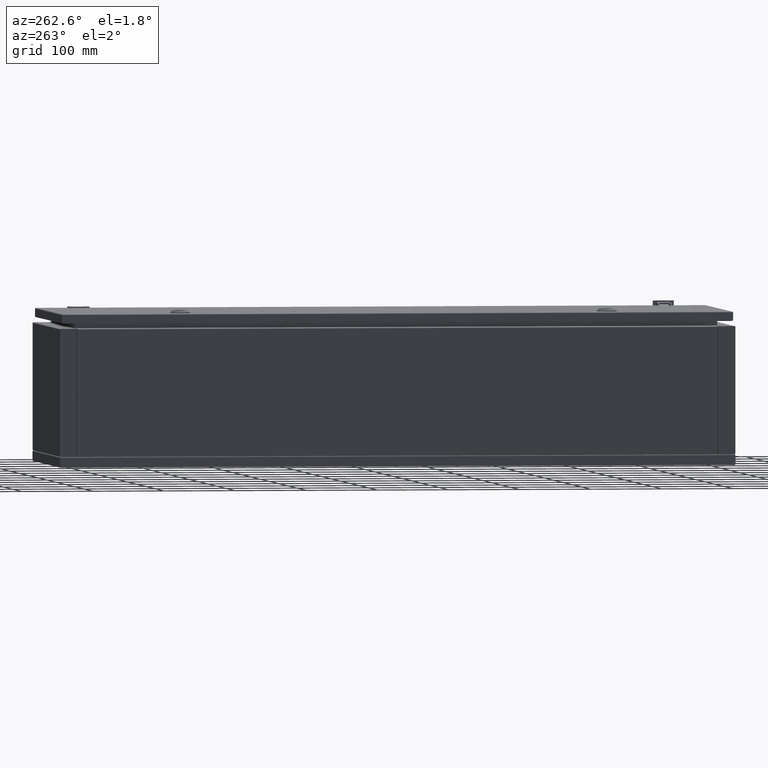
[diagram: clean part render]
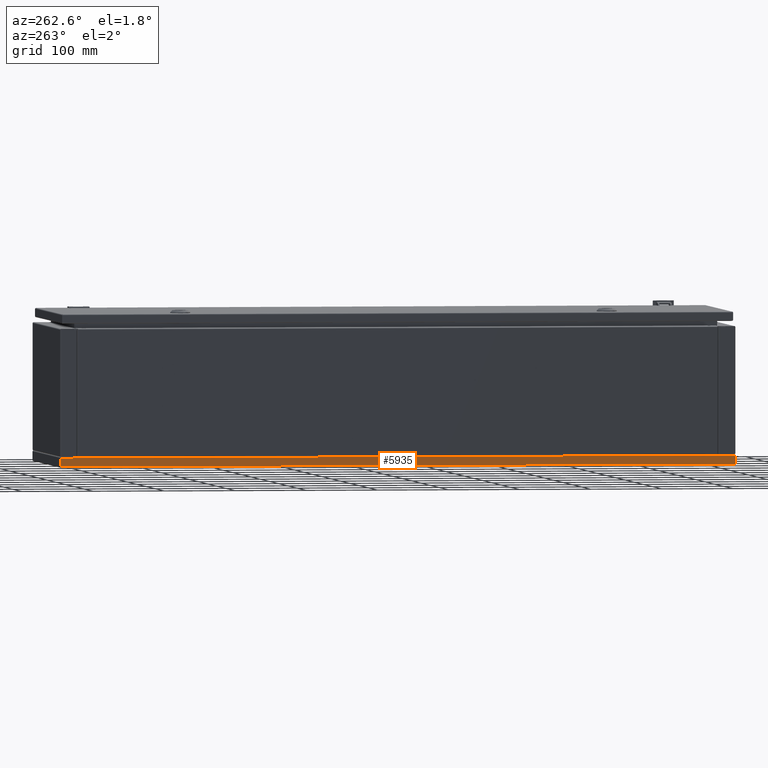
[diagram: same view with one face highlighted and labeled with its STEP entity id]
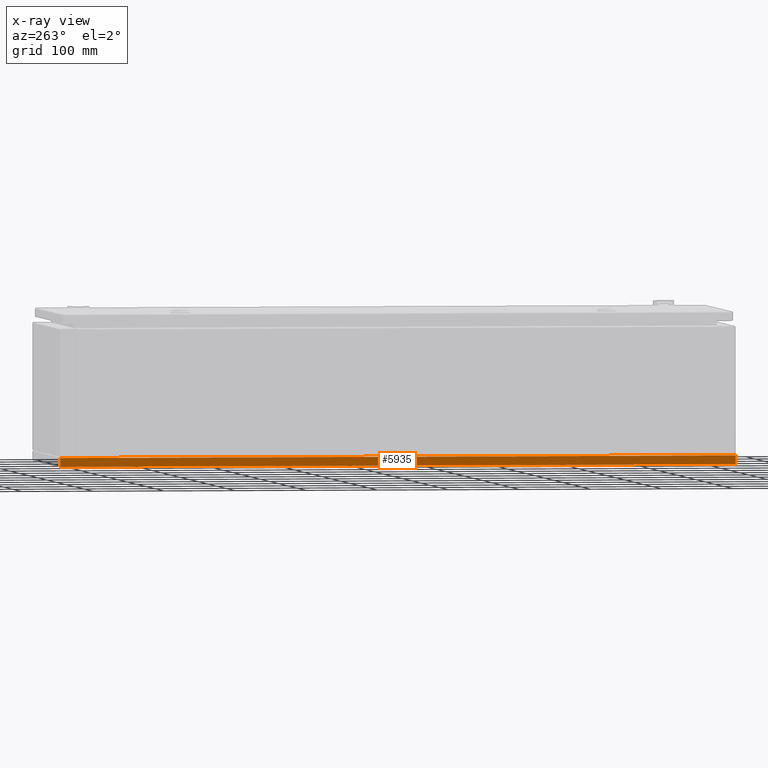
[diagram: x-ray of the same camera — body ghosted, the highlighted face saturated]
A machine part, auxiliary view. The second image highlights one B-rep face of the part: STEP entity #5935.
The next image is the same camera in x-ray: the body ghosted, the highlighted face saturated — about 0% of this face is hidden behind the body in this view.
In plain terms, the highlighted planar face has unit normal (1, -0, 0).
Its self-contained STEP definition (entity closure, byte-faithful):
#2428 = ORIENTED_EDGE ( 'NONE', *, *, #15676, .T. ) ;
#5935 = ADVANCED_FACE ( 'NONE', ( #8319 ), #38559, .F. ) ;
#8319 = FACE_OUTER_BOUND ( 'NONE', #52671, .T. ) ;
#9082 = CARTESIAN_POINT ( 'NONE',  ( -150.0000000000000000, -475.0000000000000000, 0.4999999999998889800 ) ) ;
#11214 = DIRECTION ( 'NONE',  ( 3.965082230804130600E-015, -8.786446564059620000E-032, -1.000000000000000000 ) ) ;
#15676 = EDGE_CURVE ( 'NONE', #65637, #73006, #31934, .T. ) ;
#16489 = AXIS2_PLACEMENT_3D ( 'NONE', #85762, #78406, #11214 ) ;
#22145 = LINE ( 'NONE', #31331, #47719 ) ;
#25372 = ORIENTED_EDGE ( 'NONE', *, *, #58562, .T. ) ;
#26314 = VECTOR ( 'NONE', #32668, 1000.000000000000000 ) ;
#31331 = CARTESIAN_POINT ( 'NONE',  ( -150.0000000000000000, 475.0000000000000000, 0.4999999999997779600 ) ) ;
#31934 = LINE ( 'NONE', #58171, #82968 ) ;
#32668 = DIRECTION ( 'NONE',  ( -4.625929269271490800E-015, 4.625929269271490800E-015, 1.000000000000000000 ) ) ;
#33746 = LINE ( 'NONE', #39238, #26314 ) ;
#36027 = EDGE_CURVE ( 'NONE', #56297, #37172, #33746, .T. ) ;
#37172 = VERTEX_POINT ( 'NONE', #79916 ) ;
#37499 = CARTESIAN_POINT ( 'NONE',  ( -150.0000000000000000, 475.0000000000000000, 0.4999999999997779600 ) ) ;
#37917 = DIRECTION ( 'NONE',  ( -4.625929269271490800E-015, -4.625929269271490800E-015, 1.000000000000000000 ) ) ;
#38559 = PLANE ( 'NONE',  #16489 ) ;
#39238 = CARTESIAN_POINT ( 'NONE',  ( -150.0000000000000000, 475.0000000000000000, 0.4999999999998060400 ) ) ;
#40605 = CARTESIAN_POINT ( 'NONE',  ( -150.0000000000000000, -475.0000000000000000, 12.50000000000000000 ) ) ;
#46764 = ORIENTED_EDGE ( 'NONE', *, *, #36027, .F. ) ;
#47719 = VECTOR ( 'NONE', #86501, 1000.000000000000000 ) ;
#48302 = ORIENTED_EDGE ( 'NONE', *, *, #85589, .F. ) ;
#52671 = EDGE_LOOP ( 'NONE', ( #25372, #46764, #48302, #2428 ) ) ;
#56297 = VERTEX_POINT ( 'NONE', #37499 ) ;
#56926 = LINE ( 'NONE', #75874, #61203 ) ;
#58171 = CARTESIAN_POINT ( 'NONE',  ( -150.0000000000000000, -475.0000000000000000, 0.4999999999998889800 ) ) ;
#58562 = EDGE_CURVE ( 'NONE', #73006, #37172, #56926, .T. ) ;
#61203 = VECTOR ( 'NONE', #69312, 1000.000000000000000 ) ;
#65637 = VERTEX_POINT ( 'NONE', #9082 ) ;
#69312 = DIRECTION ( 'NONE',  ( 4.930380657631319400E-032, 1.000000000000000000, -1.009282108615428000E-032 ) ) ;
#73006 = VERTEX_POINT ( 'NONE', #40605 ) ;
#75874 = CARTESIAN_POINT ( 'NONE',  ( -150.0000000000000000, -473.2928932188140200, 12.49999999999979900 ) ) ;
#78406 = DIRECTION ( 'NONE',  ( 1.000000000000000000, -5.843279076974520100E-017, 3.965082230804130600E-015 ) ) ;
#79916 = CARTESIAN_POINT ( 'NONE',  ( -150.0000000000000000, 475.0000000000000000, 12.49999999999979900 ) ) ;
#82968 = VECTOR ( 'NONE', #37917, 1000.000000000000000 ) ;
#85589 = EDGE_CURVE ( 'NONE', #65637, #56297, #22145, .T. ) ;
#85762 = CARTESIAN_POINT ( 'NONE',  ( -150.0000000000000000, -8.030386352598410400E-014, -7.771561172376100800E-013 ) ) ;
#86501 = DIRECTION ( 'NONE',  ( 5.843279076974549700E-017, 1.000000000000000000, -8.764918615461768500E-017 ) ) ;